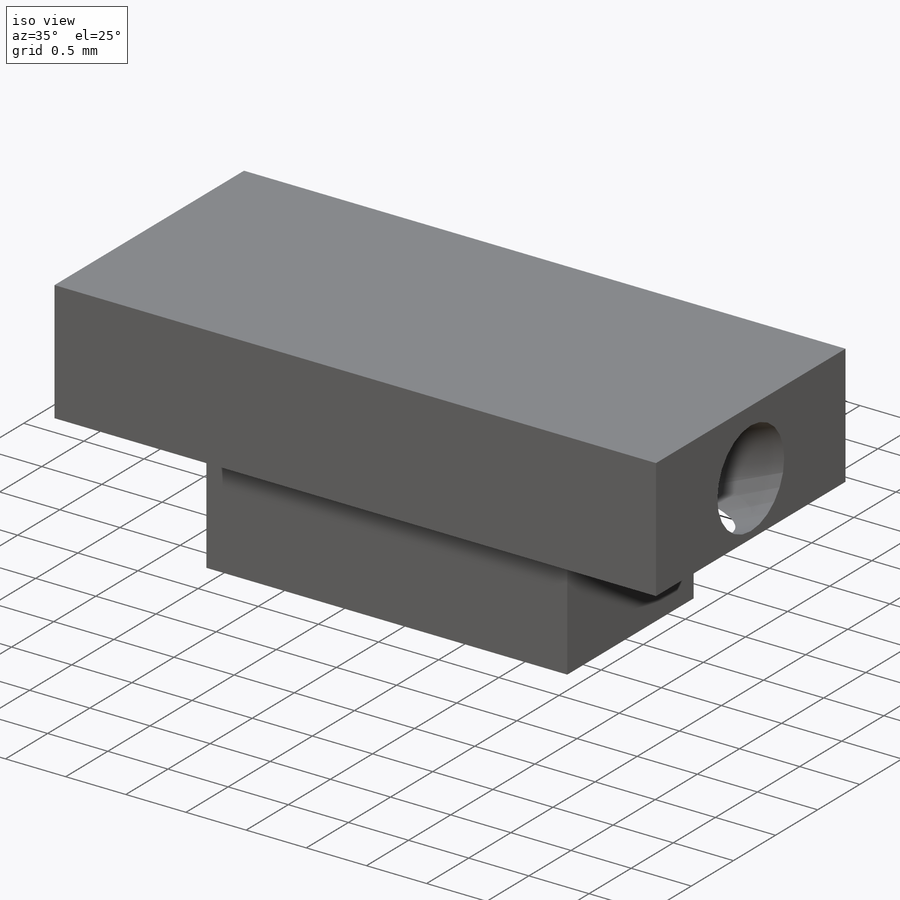
[diagram: iso view]
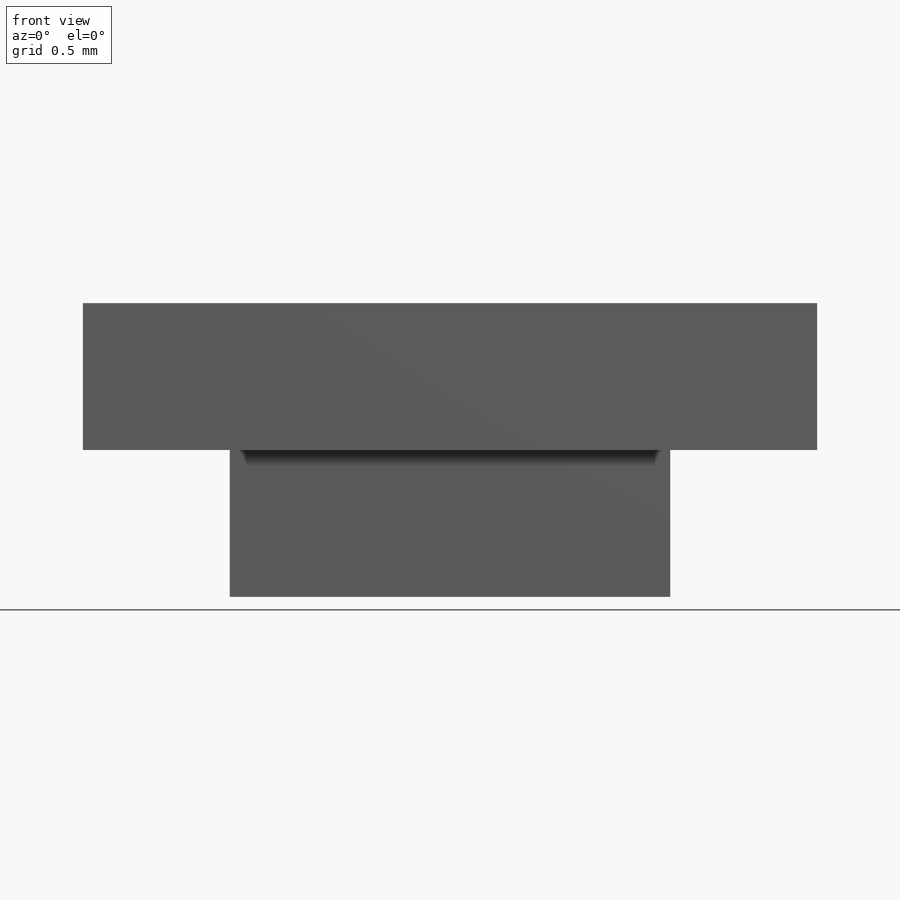
[diagram: front view]
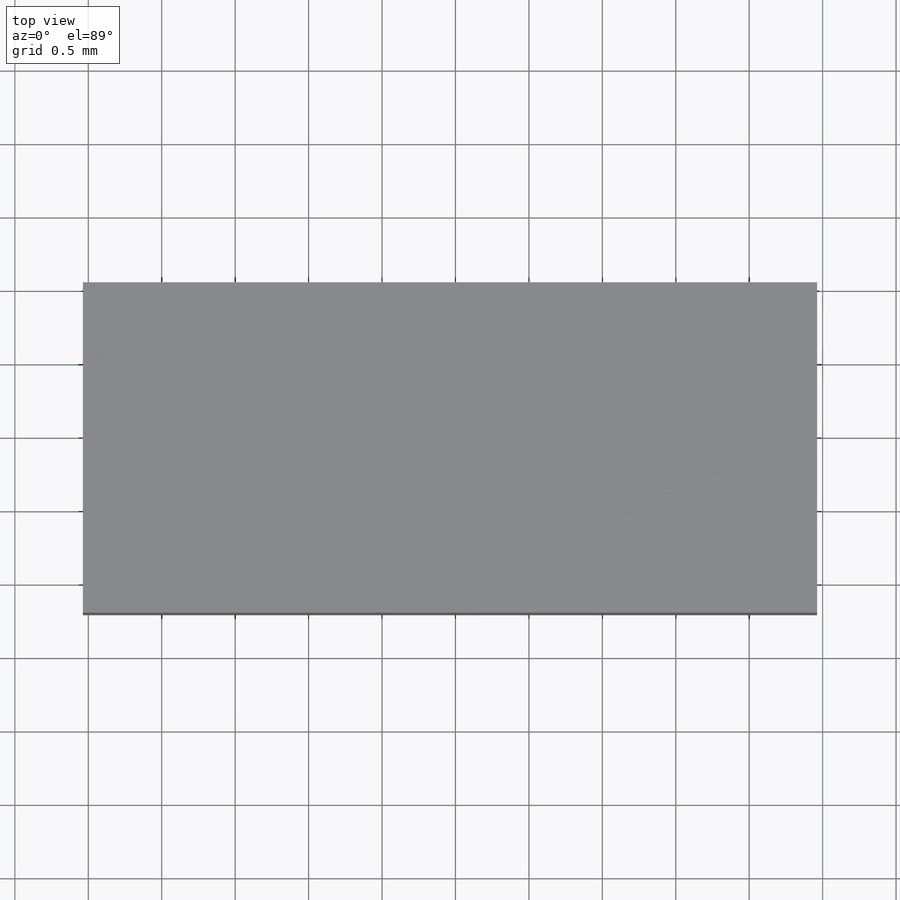
[diagram: top view]
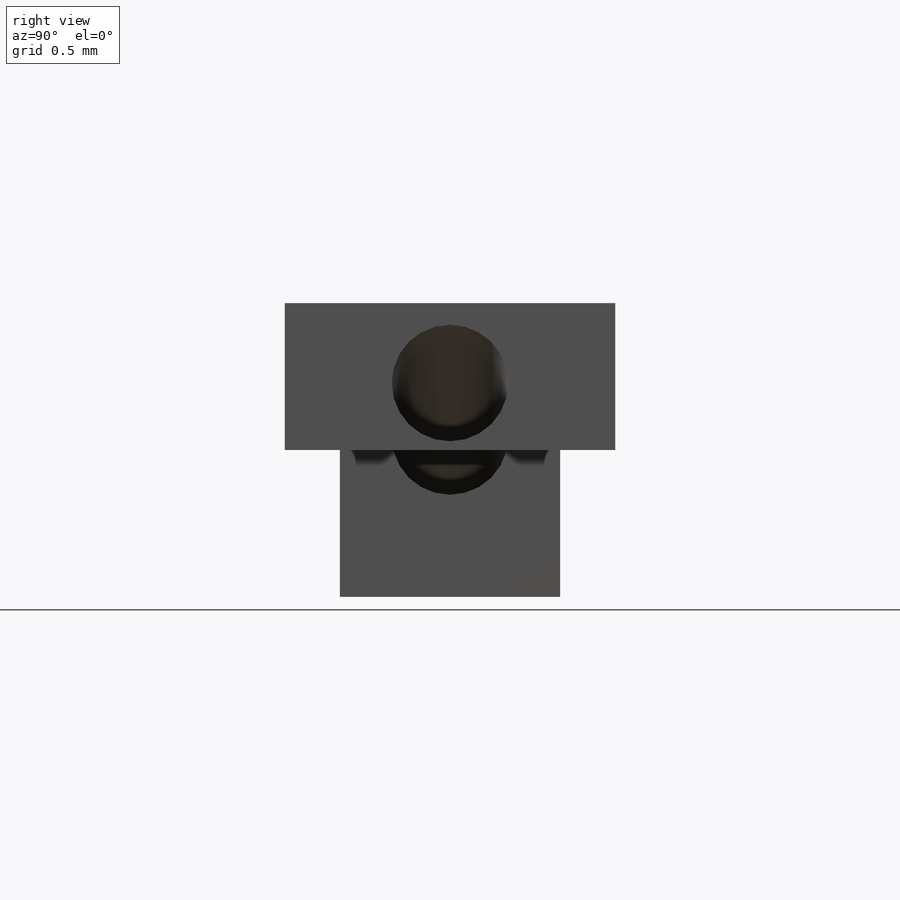
[diagram: right view]
SOLIDWORKS PART (.sldprt)
format: sldprt  version: not decoded by parser v0  size: 217,088 bytes
history: native  units: mm
features: sketch x4, extrude x2, material x1, plane x1, sweep x1 (+13 scaffold rows collapsed)
feature tree (22):
  scaffold x13  (default folders/planes/origin — collapsed)
  material  "Material <not specified>"
  sketch  "Sketch1"  dims[c1.D1=~0.79375mm c2.D1=~0.348438mm c2.D2=3.0mm c3.D1=1.5mm]
  extrude  "Boss-Extrude1"  Depth=1mm
  sketch  "Sketch2"  dims[c1.D1=5.0mm c1.D2=~1.178583mm c2.D1=1.0mm c3.D1=70.0deg]
  plane  "Plane1"
  sketch  "Sketch5"  dims[c1.D1=~1.579511mm c1.D2=~3.692831mm c2.D1=2.25mm c2.D2=0.4mm c2.D3=0.4mm c2.D4=0.375mm c3.D2=5.0mm c3.D3=~1.874023mm]
  extrude  "Boss-Extrude2"  Depth=1mm
  sketch  "Sketch4"  dims[D1=~0.79375mm]
  sweep  "Cut-Sweep3"
decode coverage: 6 of 7 modeling features carry decoded parameters
note: ~ marks probable driven/reference dimensions
note: suppression state not decoded; provenance and decode notes live in map.json
